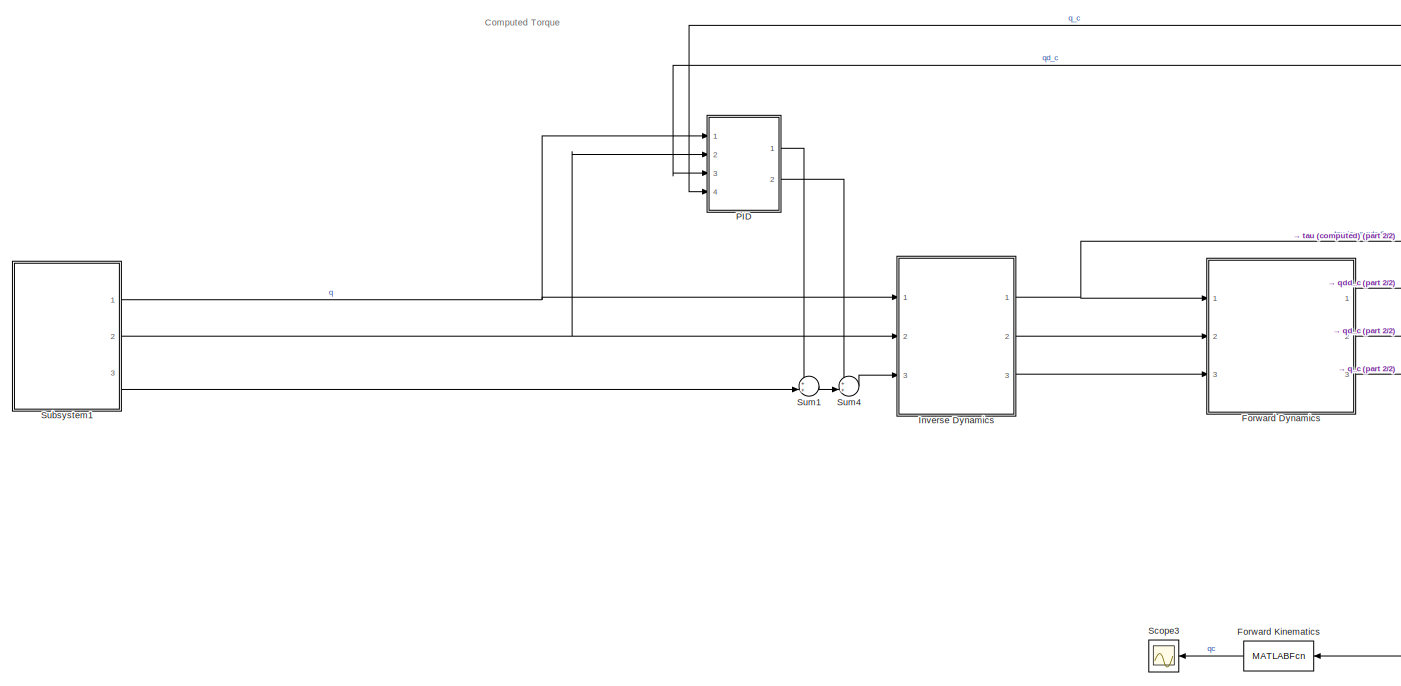
[diagram: root canvas - part 1/2, most of the canvas]
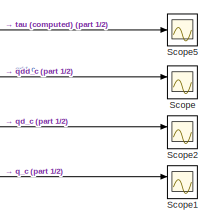
[diagram: root canvas - part 2/2, middle right region]
MODEL slx_0e473e789701
KIND model
CONFIG AbsTol = auto
CONFIG EnableMultiTasking = off
CONFIG FixedStep = 0.01
CONFIG MaxStep = auto
CONFIG MinStep = auto
CONFIG RelTol = 1e-3
CONFIG SampleTimeConstraint = Unconstrained
CONFIG Solver = VariableStepAuto
CONFIG SolverName = VariableStepAuto
CONFIG StartTime = 0.0
CONFIG StopTime = 5
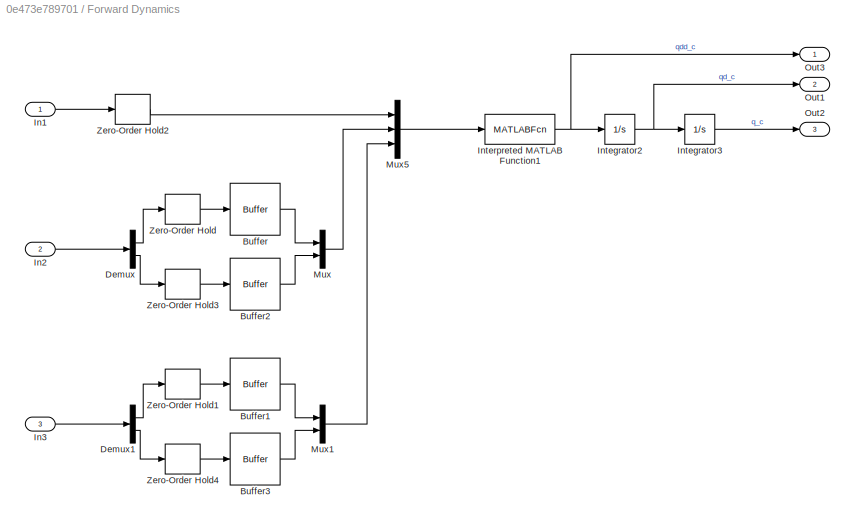
BLOCK [SubSystem] Forward Dynamics
  Ports = [3, 3]
  RequestExecContextInheritance = off
  ShowPortLabels = SignalName
BLOCK [Buffer] Forward Dynamics/Buffer
  N = 2
  OutputFrames = off
BLOCK [Buffer] Forward Dynamics/Buffer1
  N = 2
  OutputFrames = off
BLOCK [Buffer] Forward Dynamics/Buffer2
  N = 2
  OutputFrames = off
BLOCK [Buffer] Forward Dynamics/Buffer3
  N = 2
  OutputFrames = off
BLOCK [Demux] Forward Dynamics/Demux
  DisplayOption = bar
  Outputs = 2
  Ports = [1, 2]
BLOCK [Demux] Forward Dynamics/Demux1
  DisplayOption = bar
  Outputs = 2
  Ports = [1, 2]
BLOCK [Inport] Forward Dynamics/In1
  IconDisplay = Port number
BLOCK [Inport] Forward Dynamics/In2
  IconDisplay = Port number
  Port = 2
BLOCK [Inport] Forward Dynamics/In3
  IconDisplay = Port number
  Port = 3
BLOCK [Integrator] Forward Dynamics/Integrator2
  Ports = [1, 1]
BLOCK [Integrator] Forward Dynamics/Integrator3
  Ports = [1, 1]
BLOCK [MATLABFcn] Forward Dynamics/Interpreted MATLAB Function1
  MATLABFcn = forwardDyn
  Output1D = off
  Ports = [1, 1]
BLOCK [Mux] Forward Dynamics/Mux
  DisplayOption = bar
  Inputs = 2
  Ports = [2, 1]
BLOCK [Mux] Forward Dynamics/Mux1
  DisplayOption = bar
  Inputs = 2
  Ports = [2, 1]
BLOCK [Mux] Forward Dynamics/Mux5
  DisplayOption = bar
  Inputs = 3
  Ports = [3, 1]
BLOCK [Outport] Forward Dynamics/Out1
  IconDisplay = Port number
  Port = 2
BLOCK [Outport] Forward Dynamics/Out2
  IconDisplay = Port number
  Port = 3
BLOCK [Outport] Forward Dynamics/Out3
  IconDisplay = Port number
BLOCK [ZeroOrderHold] Forward Dynamics/Zero-Order Hold
  SampleTime = 0.01
BLOCK [ZeroOrderHold] Forward Dynamics/Zero-Order Hold1
  SampleTime = 0.01
BLOCK [ZeroOrderHold] Forward Dynamics/Zero-Order Hold2
  SampleTime = 0.01
BLOCK [ZeroOrderHold] Forward Dynamics/Zero-Order Hold3
  SampleTime = 0.01
BLOCK [ZeroOrderHold] Forward Dynamics/Zero-Order Hold4
  SampleTime = 0.01
BLOCK [MATLABFcn] Forward Kinematics
  MATLABFcn = calcForward
  Output1D = off
  Ports = [1, 1]
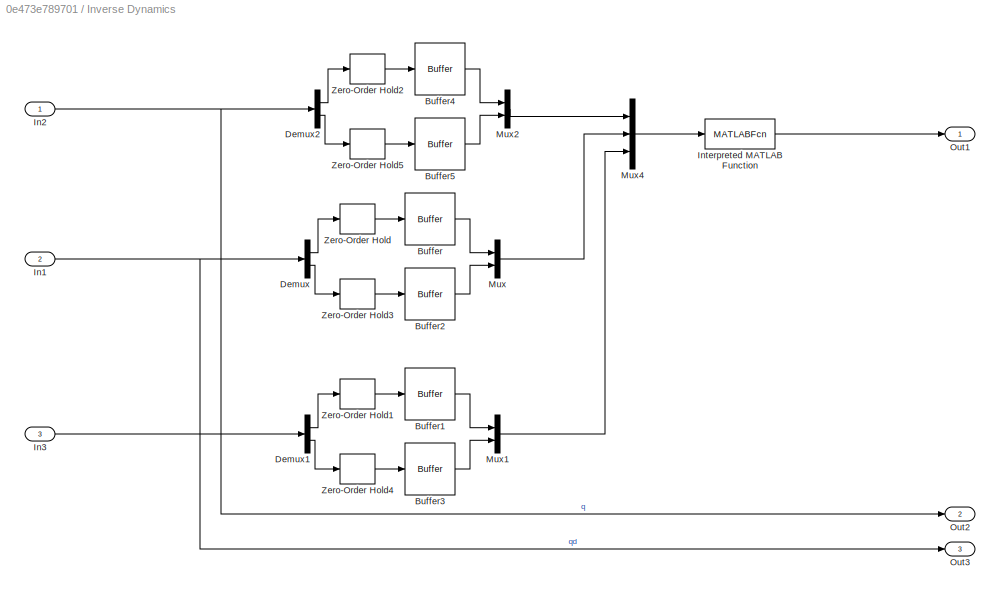
BLOCK [SubSystem] Inverse Dynamics
  Ports = [3, 3]
  RequestExecContextInheritance = off
BLOCK [Buffer] Inverse Dynamics/Buffer
  N = 2
  OutputFrames = off
BLOCK [Buffer] Inverse Dynamics/Buffer1
  N = 2
  OutputFrames = off
BLOCK [Buffer] Inverse Dynamics/Buffer2
  N = 2
  OutputFrames = off
BLOCK [Buffer] Inverse Dynamics/Buffer3
  N = 2
  OutputFrames = off
BLOCK [Buffer] Inverse Dynamics/Buffer4
  N = 2
  OutputFrames = off
BLOCK [Buffer] Inverse Dynamics/Buffer5
  N = 2
  OutputFrames = off
BLOCK [Demux] Inverse Dynamics/Demux
  DisplayOption = bar
  Outputs = 2
  Ports = [1, 2]
BLOCK [Demux] Inverse Dynamics/Demux1
  DisplayOption = bar
  Outputs = 2
  Ports = [1, 2]
BLOCK [Demux] Inverse Dynamics/Demux2
  DisplayOption = bar
  Outputs = 2
  Ports = [1, 2]
BLOCK [Inport] Inverse Dynamics/In1
  IconDisplay = Port number
  Port = 2
BLOCK [Inport] Inverse Dynamics/In2
  IconDisplay = Port number
BLOCK [Inport] Inverse Dynamics/In3
  IconDisplay = Port number
  Port = 3
BLOCK [MATLABFcn] Inverse Dynamics/Interpreted MATLAB Function
  MATLABFcn = RNE_sim
  Output1D = off
  Ports = [1, 1]
BLOCK [Mux] Inverse Dynamics/Mux
  DisplayOption = bar
  Inputs = 2
  Ports = [2, 1]
BLOCK [Mux] Inverse Dynamics/Mux1
  DisplayOption = bar
  Inputs = 2
  Ports = [2, 1]
BLOCK [Mux] Inverse Dynamics/Mux2
  DisplayOption = bar
  Inputs = 2
  Ports = [2, 1]
BLOCK [Mux] Inverse Dynamics/Mux4
  DisplayOption = bar
  Inputs = 3
  Ports = [3, 1]
BLOCK [Outport] Inverse Dynamics/Out1
  IconDisplay = Port number
BLOCK [Outport] Inverse Dynamics/Out2
  IconDisplay = Port number
  Port = 2
BLOCK [Outport] Inverse Dynamics/Out3
  IconDisplay = Port number
  Port = 3
BLOCK [ZeroOrderHold] Inverse Dynamics/Zero-Order Hold
  SampleTime = 0.01
BLOCK [ZeroOrderHold] Inverse Dynamics/Zero-Order Hold1
  SampleTime = 0.01
BLOCK [ZeroOrderHold] Inverse Dynamics/Zero-Order Hold2
  SampleTime = 0.01
BLOCK [ZeroOrderHold] Inverse Dynamics/Zero-Order Hold3
  SampleTime = 0.01
BLOCK [ZeroOrderHold] Inverse Dynamics/Zero-Order Hold4
  SampleTime = 0.01
BLOCK [ZeroOrderHold] Inverse Dynamics/Zero-Order Hold5
  SampleTime = 0.01
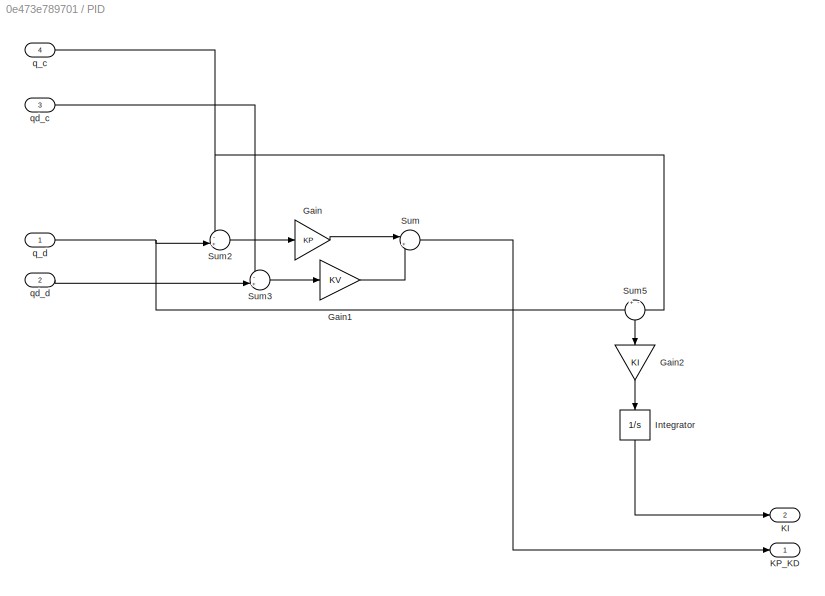
BLOCK [SubSystem] PID
  Ports = [4, 2]
  RequestExecContextInheritance = off
BLOCK [Gain] PID/Gain
  Gain = KP
  Multiplication = Matrix(K*u) (u vector)
  OutDataTypeStr = Inherit: Inherit via internal rule
  ParamDataTypeStr = Inherit: Inherit via internal rule
  SaturateOnIntegerOverflow = off
BLOCK [Gain] PID/Gain1
  Gain = KV
  Multiplication = Matrix(K*u) (u vector)
  OutDataTypeStr = Inherit: Inherit via internal rule
  ParamDataTypeStr = Inherit: Inherit via internal rule
  SaturateOnIntegerOverflow = off
BLOCK [Gain] PID/Gain2
  Gain = KI
  Multiplication = Matrix(K*u) (u vector)
  OutDataTypeStr = Inherit: Inherit via internal rule
  ParamDataTypeStr = Inherit: Inherit via internal rule
  SaturateOnIntegerOverflow = off
BLOCK [Integrator] PID/Integrator
  Ports = [1, 1]
BLOCK [Outport] PID/KI
  IconDisplay = Port number
  Port = 2
BLOCK [Outport] PID/KP_KD
  IconDisplay = Port number
BLOCK [Sum] PID/Sum
  IconShape = round
  InputSameDT = off
  Inputs = |++
  OutDataTypeStr = Inherit: Inherit via internal rule
  Ports = [2, 1]
  SaturateOnIntegerOverflow = off
BLOCK [Sum] PID/Sum2
  IconShape = round
  InputSameDT = off
  Inputs = -+|
  OutDataTypeStr = Inherit: Inherit via internal rule
  Ports = [2, 1]
  SaturateOnIntegerOverflow = off
BLOCK [Sum] PID/Sum3
  IconShape = round
  InputSameDT = off
  Inputs = -+|
  OutDataTypeStr = Inherit: Inherit via internal rule
  Ports = [2, 1]
  SaturateOnIntegerOverflow = off
BLOCK [Sum] PID/Sum5
  IconShape = round
  InputSameDT = off
  Inputs = +-
  OutDataTypeStr = Inherit: Inherit via internal rule
  Ports = [2, 1]
  SaturateOnIntegerOverflow = off
BLOCK [Inport] PID/q_c
  IconDisplay = Port number
  Port = 4
BLOCK [Inport] PID/q_d
  IconDisplay = Port number
BLOCK [Inport] PID/qd_c
  IconDisplay = Port number
  Port = 3
BLOCK [Inport] PID/qd_d
  IconDisplay = Port number
  Port = 2
BLOCK [Scope] Scope
  Floating = off
  NumInputPorts = 2
  Ports = [2]
  ScopeSpecificationString = Simulink.scopes.TimeScopeBlockCfg('CurrentConfiguration', extmgr.ConfigurationSet(extmgr.Configuration('Core','General UI',true),extmgr.Configuration('Core','Source UI',true),extmgr.Configuration('Sources','WiredSimulink',true,'DataLoggingVariableName','ScopeData1'),extmgr.Configuration('Visuals','Time Domain',true,'SerializedDisplays',{struct('MinYLimReal','-0.04551','MaxYLimReal','0.40958','YLab...<+1431ch>
BLOCK [Scope] Scope1
  Floating = off
  NumInputPorts = 2
  Ports = [2]
  ScopeSpecificationString = Simulink.scopes.TimeScopeBlockCfg('CurrentConfiguration', extmgr.ConfigurationSet(extmgr.Configuration('Core','General UI',true),extmgr.Configuration('Core','Source UI',true),extmgr.Configuration('Sources','WiredSimulink',true,'DataLoggingVariableName','ScopeData2'),extmgr.Configuration('Visuals','Time Domain',true,'SerializedDisplays',{struct('MinYLimReal','-5.0625','MaxYLimReal','45.5625','YLabe...<+1454ch>
BLOCK [Scope] Scope2
  Floating = off
  NumInputPorts = 2
  Ports = [2]
  ScopeSpecificationString = Simulink.scopes.TimeScopeBlockCfg('CurrentConfiguration', extmgr.ConfigurationSet(extmgr.Configuration('Core','General UI',true),extmgr.Configuration('Core','Source UI',true),extmgr.Configuration('Sources','WiredSimulink',true,'DataLoggingVariableName','ScopeData3'),extmgr.Configuration('Visuals','Time Domain',true,'SerializedDisplays',{struct('MinYLimReal','-0.26763','MaxYLimReal','2.40867','YLab...<+1456ch>
BLOCK [Scope] Scope3
  Floating = off
  NumInputPorts = 1
  Ports = [1]
  ScopeSpecificationString = Simulink.scopes.TimeScopeBlockCfg('CurrentConfiguration', extmgr.ConfigurationSet(extmgr.Configuration('Core','General UI',true),extmgr.Configuration('Core','Source UI',true),extmgr.Configuration('Sources','WiredSimulink',true,'DataLoggingVariableName','ScopeData1'),extmgr.Configuration('Visuals','Time Domain',true),extmgr.Configuration('Tools','Plot Navigation',true),extmgr.Configuration('Tools',...<+40ch>
BLOCK [Scope] Scope5
  Floating = off
  NumInputPorts = 1
  Ports = [1]
  ScopeSpecificationString = Simulink.scopes.TimeScopeBlockCfg('CurrentConfiguration', extmgr.ConfigurationSet(extmgr.Configuration('Core','General UI',true),extmgr.Configuration('Core','Source UI',true),extmgr.Configuration('Sources','WiredSimulink',true),extmgr.Configuration('Visuals','Time Domain',true,'SerializedDisplays',{struct('MinYLimReal','-42.75693','MaxYLimReal','38.34838','YLabelReal','','MinYLimMag','0.00000','Ma...<+1388ch>
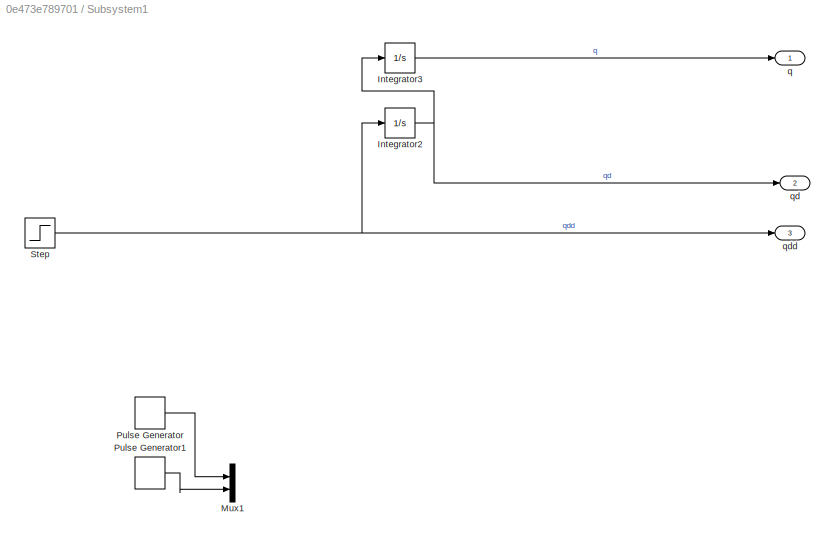
BLOCK [SubSystem] Subsystem1
  Ports = [0, 3]
  RequestExecContextInheritance = off
BLOCK [Integrator] Subsystem1/Integrator2
  Ports = [1, 1]
BLOCK [Integrator] Subsystem1/Integrator3
  Ports = [1, 1]
BLOCK [Mux] Subsystem1/Mux1
  Commented = on
  DisplayOption = bar
  Inputs = 2
  Ports = [2, 1]
BLOCK [DiscretePulseGenerator] Subsystem1/Pulse Generator
  Commented = on
  Ports = [0, 1]
  PulseType = Time based
  PulseWidth = 5
BLOCK [DiscretePulseGenerator] Subsystem1/Pulse Generator1
  Commented = on
  Ports = [0, 1]
  PulseType = Time based
  PulseWidth = 5
BLOCK [Step] Subsystem1/Step
  After = [0.35;0.35]
  Before = [0;0]
  SampleTime = 0
  VectorParams1D = off
BLOCK [Outport] Subsystem1/q
  IconDisplay = Port number
BLOCK [Outport] Subsystem1/qd
  IconDisplay = Port number
  Port = 2
BLOCK [Outport] Subsystem1/qdd
  IconDisplay = Port number
  Port = 3
BLOCK [Sum] Sum1
  IconShape = round
  InputSameDT = off
  Inputs = ++|
  OutDataTypeStr = Inherit: Inherit via internal rule
  Ports = [2, 1]
  SaturateOnIntegerOverflow = off
BLOCK [Sum] Sum4
  IconShape = round
  InputSameDT = off
  Inputs = ++|
  OutDataTypeStr = Inherit: Inherit via internal rule
  Ports = [2, 1]
  SaturateOnIntegerOverflow = off
ANNOTATION (root): Computed Torque
LINE Forward Dynamics/Buffer1:1 -> Forward Dynamics/Mux1:1
LINE Forward Dynamics/Buffer2:1 -> Forward Dynamics/Mux:2
LINE Forward Dynamics/Buffer3:1 -> Forward Dynamics/Mux1:2
LINE Forward Dynamics/Buffer:1 -> Forward Dynamics/Mux:1
LINE Forward Dynamics/Demux1:1 -> Forward Dynamics/Zero-Order Hold1:1
LINE Forward Dynamics/Demux1:2 -> Forward Dynamics/Zero-Order Hold4:1
LINE Forward Dynamics/Demux:1 -> Forward Dynamics/Zero-Order Hold:1
LINE Forward Dynamics/Demux:2 -> Forward Dynamics/Zero-Order Hold3:1
LINE Forward Dynamics/In1:1 -> Forward Dynamics/Zero-Order Hold2:1
LINE Forward Dynamics/In2:1 -> Forward Dynamics/Demux:1
LINE Forward Dynamics/In3:1 -> Forward Dynamics/Demux1:1
NET Forward Dynamics/Integrator2:1 -> Forward Dynamics/Integrator3:1, Forward Dynamics/Out1:1
LINE Forward Dynamics/Integrator3:1 -> Forward Dynamics/Out2:1
NET Forward Dynamics/Interpreted MATLAB Function1:1 -> Forward Dynamics/Integrator2:1, Forward Dynamics/Out3:1
LINE Forward Dynamics/Mux1:1 -> Forward Dynamics/Mux5:3
LINE Forward Dynamics/Mux5:1 -> Forward Dynamics/Interpreted MATLAB Function1:1
LINE Forward Dynamics/Mux:1 -> Forward Dynamics/Mux5:2
LINE Forward Dynamics/Zero-Order Hold1:1 -> Forward Dynamics/Buffer1:1
LINE Forward Dynamics/Zero-Order Hold2:1 -> Forward Dynamics/Mux5:1
LINE Forward Dynamics/Zero-Order Hold3:1 -> Forward Dynamics/Buffer2:1
LINE Forward Dynamics/Zero-Order Hold4:1 -> Forward Dynamics/Buffer3:1
LINE Forward Dynamics/Zero-Order Hold:1 -> Forward Dynamics/Buffer:1
LINE Forward Dynamics:1 -> Scope:1
NET Forward Dynamics:2 -> PID:3, Scope2:1
NET Forward Dynamics:3 -> Forward Kinematics:1, PID:4, Scope1:1
LINE Forward Kinematics:1 -> Scope3:1
LINE Inverse Dynamics/Buffer1:1 -> Inverse Dynamics/Mux1:1
LINE Inverse Dynamics/Buffer2:1 -> Inverse Dynamics/Mux:2
LINE Inverse Dynamics/Buffer3:1 -> Inverse Dynamics/Mux1:2
LINE Inverse Dynamics/Buffer4:1 -> Inverse Dynamics/Mux2:1
LINE Inverse Dynamics/Buffer5:1 -> Inverse Dynamics/Mux2:2
LINE Inverse Dynamics/Buffer:1 -> Inverse Dynamics/Mux:1
LINE Inverse Dynamics/Demux1:1 -> Inverse Dynamics/Zero-Order Hold1:1
LINE Inverse Dynamics/Demux1:2 -> Inverse Dynamics/Zero-Order Hold4:1
LINE Inverse Dynamics/Demux2:1 -> Inverse Dynamics/Zero-Order Hold2:1
LINE Inverse Dynamics/Demux2:2 -> Inverse Dynamics/Zero-Order Hold5:1
LINE Inverse Dynamics/Demux:1 -> Inverse Dynamics/Zero-Order Hold:1
LINE Inverse Dynamics/Demux:2 -> Inverse Dynamics/Zero-Order Hold3:1
NET Inverse Dynamics/In1:1 -> Inverse Dynamics/Demux:1, Inverse Dynamics/Out3:1
NET Inverse Dynamics/In2:1 -> Inverse Dynamics/Demux2:1, Inverse Dynamics/Out2:1
LINE Inverse Dynamics/In3:1 -> Inverse Dynamics/Demux1:1
LINE Inverse Dynamics/Interpreted MATLAB Function:1 -> Inverse Dynamics/Out1:1
LINE Inverse Dynamics/Mux1:1 -> Inverse Dynamics/Mux4:3
LINE Inverse Dynamics/Mux2:1 -> Inverse Dynamics/Mux4:1
LINE Inverse Dynamics/Mux4:1 -> Inverse Dynamics/Interpreted MATLAB Function:1
LINE Inverse Dynamics/Mux:1 -> Inverse Dynamics/Mux4:2
LINE Inverse Dynamics/Zero-Order Hold1:1 -> Inverse Dynamics/Buffer1:1
LINE Inverse Dynamics/Zero-Order Hold2:1 -> Inverse Dynamics/Buffer4:1
LINE Inverse Dynamics/Zero-Order Hold3:1 -> Inverse Dynamics/Buffer2:1
LINE Inverse Dynamics/Zero-Order Hold4:1 -> Inverse Dynamics/Buffer3:1
LINE Inverse Dynamics/Zero-Order Hold5:1 -> Inverse Dynamics/Buffer5:1
LINE Inverse Dynamics/Zero-Order Hold:1 -> Inverse Dynamics/Buffer:1
NET Inverse Dynamics:1 -> Forward Dynamics:1, Scope5:1
LINE Inverse Dynamics:2 -> Forward Dynamics:2
LINE Inverse Dynamics:3 -> Forward Dynamics:3
LINE PID/Gain1:1 -> PID/Sum:2
LINE PID/Gain2:1 -> PID/Integrator:1
LINE PID/Gain:1 -> PID/Sum:1
LINE PID/Integrator:1 -> PID/KI:1
LINE PID/Sum2:1 -> PID/Gain:1
LINE PID/Sum3:1 -> PID/Gain1:1
LINE PID/Sum5:1 -> PID/Gain2:1
LINE PID/Sum:1 -> PID/KP_KD:1
NET PID/q_c:1 -> PID/Sum2:1, PID/Sum5:2
NET PID/q_d:1 -> PID/Sum2:2, PID/Sum5:1
LINE PID/qd_c:1 -> PID/Sum3:1
LINE PID/qd_d:1 -> PID/Sum3:2
LINE PID:1 -> Sum1:1
LINE PID:2 -> Sum4:1
NET Subsystem1/Integrator2:1 -> Subsystem1/Integrator3:1, Subsystem1/qd:1
LINE Subsystem1/Integrator3:1 -> Subsystem1/q:1
LINE Subsystem1/Pulse Generator1:1 -> Subsystem1/Mux1:2
LINE Subsystem1/Pulse Generator:1 -> Subsystem1/Mux1:1
NET Subsystem1/Step:1 -> Subsystem1/Integrator2:1, Subsystem1/qdd:1
NET Subsystem1:1 -> Inverse Dynamics:1, PID:1
NET Subsystem1:2 -> Inverse Dynamics:2, PID:2
LINE Subsystem1:3 -> Sum1:2
LINE Sum1:1 -> Sum4:2
LINE Sum4:1 -> Inverse Dynamics:3
note: NET lines group one-source signal fan-out (src -> all destinations, sorted); 1:1 wires keep LINE
